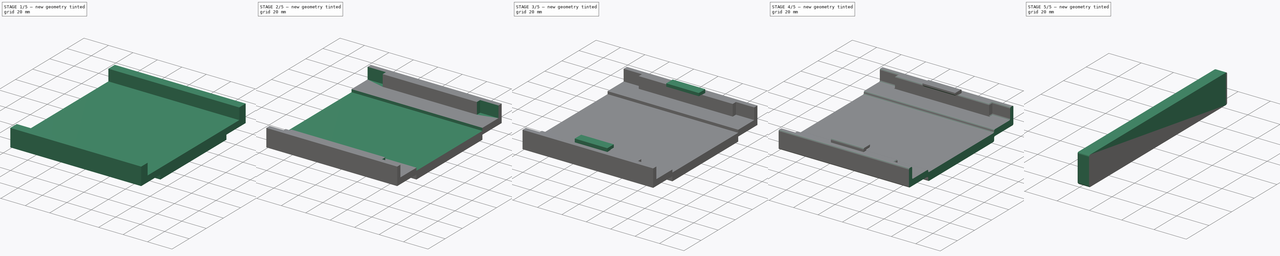
[diagram: build sequence overview — one tinted view per stage of 5, left to right]
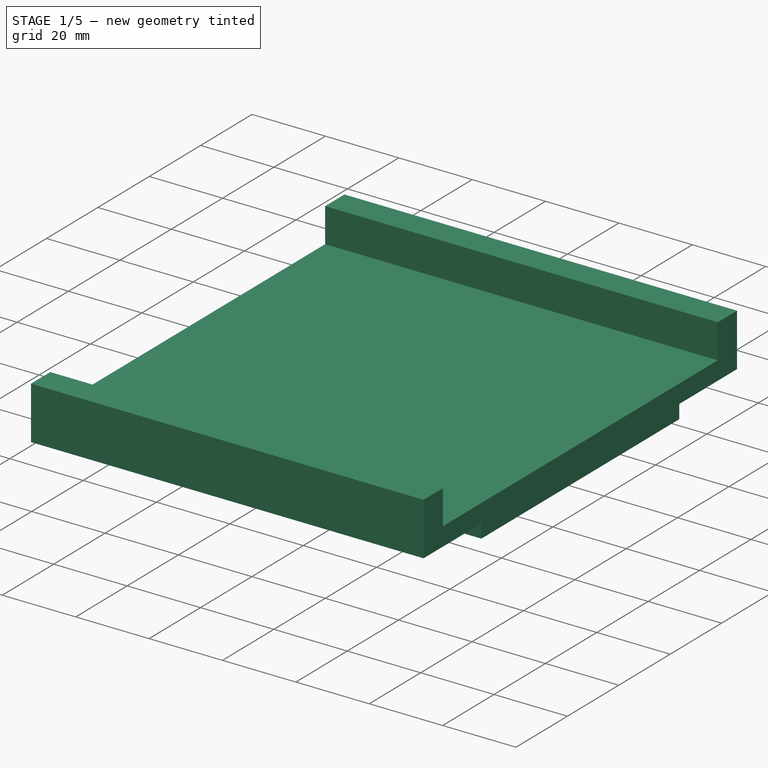
[diagram: stage 1 of 5 — iso view after this stage's code; geometry added in this stage tinted green]
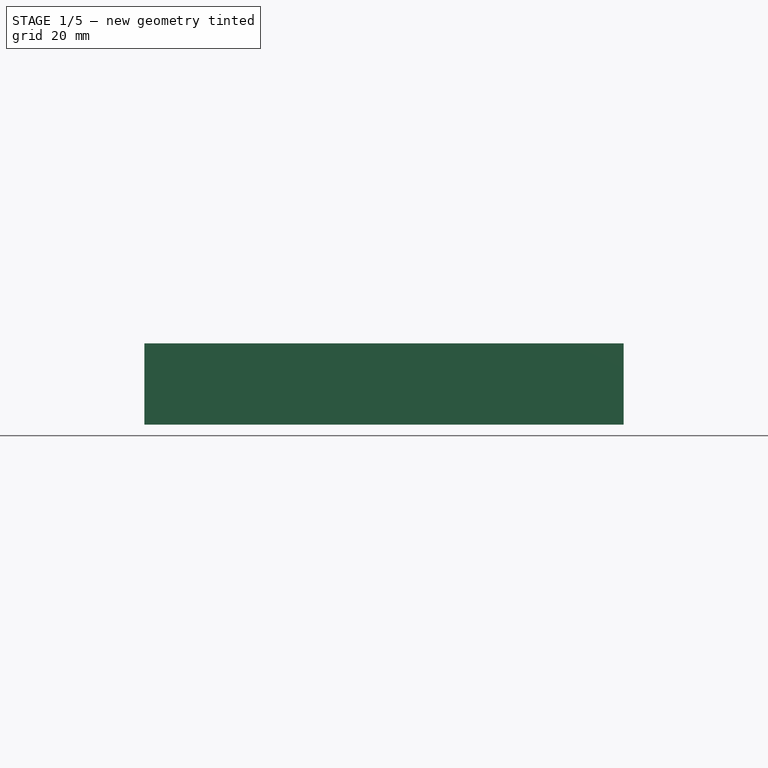
[diagram: stage 1 of 5 — front view after this stage's code; geometry added in this stage tinted green]
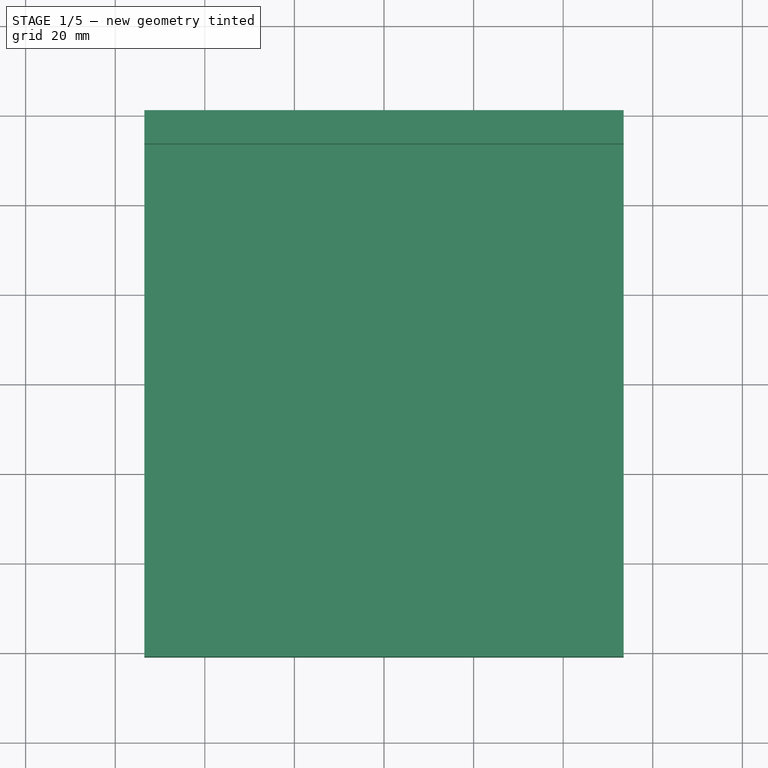
[diagram: stage 1 of 5 — top view after this stage's code; geometry added in this stage tinted green]
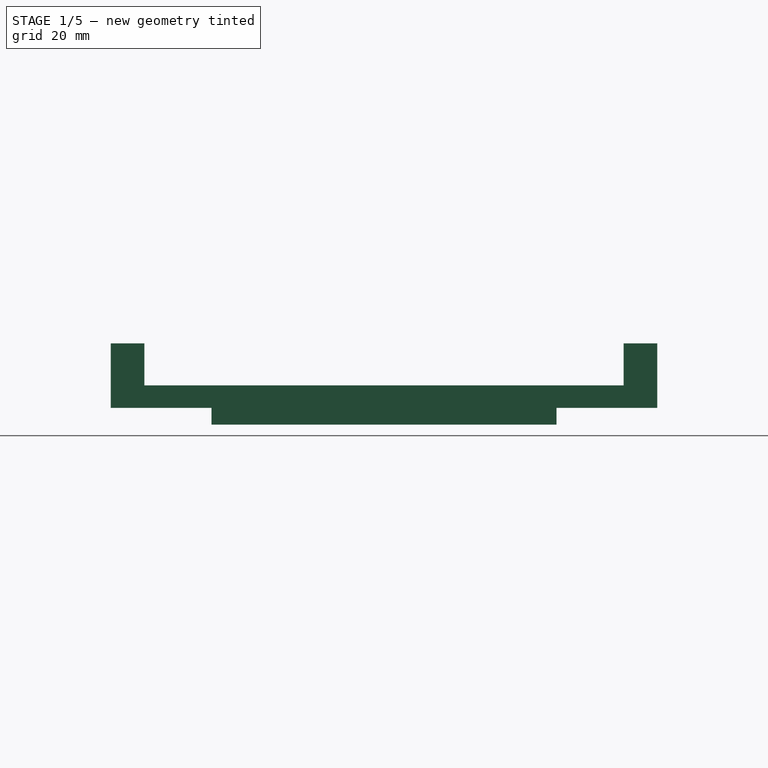
[diagram: stage 1 of 5 — right view after this stage's code; geometry added in this stage tinted green]
FCSTD DOCUMENT  (FreeCAD 1.2R20260204 (Git shallow))
Label: 2026-02-05--IntechStudioGrid3_Holder_GitH--V01
License: All rights reserved
LicenseURL: https://en.wikipedia.org/wiki/All_rights_reserved
objects: Sketcher::SketchObject×6, PartDesign::Pocket×5, App::Point×4, PartDesign::Pad×4, PartDesign::Plane×2, PartDesign::Mirrored×2, PartDesign::Fillet×2, PartDesign::Body×2, App::Part×2, Measure::MeasureLength×2, Spreadsheet::Sheet×1, PartDesign::Chamfer×1, PartDesign::SubShapeBinder×1, PartDesign::LinearPattern×1, App::DocumentObjectGroup×1
note: 59 computed .brp shape members not serialized (recipe doc carries the construction recipe); baked Part::Feature solids carry a one-line shape summary decoded from their .brp

FEATURE [App::Point] Origin001
  Role = Origin
FEATURE [Sketcher::SketchObject] Sketch
  ArcFitTolerance = 1e-06
  AttachmentSupport = -> [Origin]
  ExternalTypes = [0]
  FullyConstrained = true
  MakeInternals = false
  MapMode = 5
  expr: Constraints[25] = <<GridControl>>.GridWidthLength
  expr: Constraints[27] = <<GridControl>>.HolderWallSize
  sketch-geometry (11):
    g0: LineSegment StartX=53.5 StartY=-53.5 StartZ=0 EndX=53.5 EndY=53.5 EndZ=0
    g1: LineSegment [constr] StartX=53.5 StartY=53.5 StartZ=0 EndX=-53.5 EndY=53.5 EndZ=0
    g2: LineSegment StartX=-53.5 StartY=53.5 StartZ=0 EndX=-53.5 EndY=-53.5 EndZ=0
    g3: LineSegment [constr] StartX=-53.5 StartY=-53.5 StartZ=0 EndX=53.5 EndY=-53.5 EndZ=0
    g4: GeomPoint [constr] X=0 Y=0 Z=0
    g5: LineSegment StartX=-53.5 StartY=53.5 StartZ=0 EndX=-53.5 EndY=61 EndZ=0
    g6: LineSegment StartX=-53.5 StartY=61 StartZ=0 EndX=53.5 EndY=61 EndZ=0
    g7: LineSegment StartX=53.5 StartY=61 StartZ=0 EndX=53.5 EndY=53.5 EndZ=0
    g8: LineSegment StartX=-53.5 StartY=-53.5 StartZ=0 EndX=-53.5 EndY=-61 EndZ=0
    g9: LineSegment StartX=-53.5 StartY=-61 StartZ=0 EndX=53.5 EndY=-61 EndZ=0
    g10: LineSegment StartX=53.5 StartY=-61 StartZ=0 EndX=53.5 EndY=-53.5 EndZ=0
  constraints (28):
    c: Coincident(g0,g1)
    c: Coincident(g1,g2)
    c: Coincident(g2,g3)
    c: Coincident(g3,g0)
    c: Vertical(g0)
    c: Vertical(g2)
    c: Horizontal(g1)
    c: Horizontal(g3)
    c: Symmetric(g2,g0,g4)
    c: Coincident(g4,g-1)
    c: Coincident(g5,g1)
    c: Vertical(g5)
    c: Coincident(g6,g5)
    c: Horizontal(g6)
    c: Coincident(g7,g6)
    c: Coincident(g7,g0)
    c: Vertical(g7)
    c: Coincident(g8,g2)
    c: Vertical(g8)
    c: Coincident(g9,g8)
    c: Horizontal(g9)
    c: Coincident(g10,g9)
    c: Coincident(g10,g0)
    c: Vertical(g10)
    c: Equal(g10,g5)
    c: DistanceY(g2,g2) = 107
    c: Equal(g1,g2)
    c: DistanceY(g7,g7) = 7.5
FEATURE [Spreadsheet::Sheet] Spreadsheet  label="GridControl"
  cells = B4='GridWidthLength; C4='CircuitBoardWidthLength; D4='HolderWallSize1; G4='FitClearance; H4='AmountUtilizedLengthwise; I4='AmountUtilizedWidthwise; B5(GridWidthLength)==106.6 + 0.4; C5(CircuitBoardWidthLength)==100 mm; D5(HolderWallSize)==7.5 mm; G5(FitClearance)==4 mm / 10; H5(AmountUtilizedLengthwise)=3; I5(AmountUtilizedWidthwise)=1; B6='GridDepth; C6='CircuitBoardDepth; D6='HolderWallPocketLength; B7(GridDepth)==14.4 mm; C7(CircuitBoardDepth)==1.6 mm; D7(HolderWallPocketLength)==15 mm; B8='GridCornerFillet1; B9(GridCornerFillet1)==2.5 mm
FEATURE [PartDesign::Pad] Pad
  Direction = (0,0,1)
  Length = 14.4
  Length2 = 10
  Profile = -> Sketch
  ReferenceAxis = -> Sketch [N_Axis]
  Refine = true
  SideType = 0
  Suppressed = false
  Type = 0
  Type2 = 0
  expr: Length = <<GridControl>>.GridDepth
FEATURE [PartDesign::Plane] DatumPlane
  AttachmentSupport = -> [Pad]
  Length = 60
  MapMode = 5
  Placement = pos=(0,0,14.4) rot=(0,0,1;0rad)
  ResizeMode = 0
  Width = 60
FEATURE [Sketcher::SketchObject] Sketch001
  ArcFitTolerance = 1e-06
  AttachmentSupport = -> [DatumPlane]
  ExternalGeometry = -> [Pad]
  ExternalTypes = [0]
  FullyConstrained = true
  MakeInternals = false
  MapMode = 5
  Placement = pos=(0,0,14.4) rot=(0,0,1;0rad)
  expr: Constraints[11] = <<GridControl>>.HolderWallSize
  sketch-geometry (4):
    g0: LineSegment StartX=-53.5 StartY=53.5 StartZ=0 EndX=-53.5 EndY=-53.5 EndZ=0
    g1: LineSegment StartX=-53.5 StartY=-53.5 StartZ=0 EndX=53.5 EndY=-53.5 EndZ=0
    g2: LineSegment StartX=53.5 StartY=-53.5 StartZ=0 EndX=53.5 EndY=53.5 EndZ=0
    g3: LineSegment StartX=53.5 StartY=53.5 StartZ=0 EndX=-53.5 EndY=53.5 EndZ=0
  constraints (12):
    c: Coincident(g0,g1)
    c: Coincident(g1,g2)
    c: Coincident(g2,g3)
    c: Coincident(g3,g0)
    c: Vertical(g0)
    c: Vertical(g2)
    c: Horizontal(g1)
    c: Horizontal(g3)
    c: PointOnObject(g0,g-6)
    c: PointOnObject(g1,g-4)
    c: Equal(g0,g3)
    c: Distance(g-5,g3) = 7.5
FEATURE [PartDesign::Pocket] Pocket
  BaseFeature = -> Pad
  Direction = (0,0,-1)
  Length = 9.375
  Length2 = 5
  Profile = -> Sketch001
  ReferenceAxis = -> Sketch001 [N_Axis]
  Refine = true
  SideType = 0
  Suppressed = false
  Type = 0
  Type2 = 0
  expr: Length = <<GridControl>>.HolderWallSize * 1.25
FEATURE [Sketcher::SketchObject] Sketch002
  ArcFitTolerance = 1e-06
  AttachmentSupport = -> [Pocket]
  ExternalGeometry = -> [Pocket]
  ExternalTypes = [0]
  FullyConstrained = true
  MakeInternals = false
  MapMode = 5
  Placement = pos=(0,53.5,0) rot=(1,0,0;1.5708rad)
  expr: Constraints[21] = <<GridControl>>.HolderWallPocketLength
  sketch-geometry (8):
    g0: LineSegment StartX=-53.5 StartY=14.4 StartZ=0 EndX=-53.5 EndY=5.025 EndZ=0
    g1: LineSegment StartX=-53.5 StartY=5.025 StartZ=0 EndX=-38.5 EndY=5.025 EndZ=0
    g2: LineSegment StartX=-38.5 StartY=5.025 StartZ=0 EndX=-38.5 EndY=14.4 EndZ=0
    g3: LineSegment StartX=-38.5 StartY=14.4 StartZ=0 EndX=-53.5 EndY=14.4 EndZ=0
    g4: LineSegment StartX=53.5 StartY=14.4 StartZ=0 EndX=38.5 EndY=14.4 EndZ=0
    g5: LineSegment StartX=38.5 StartY=14.4 StartZ=0 EndX=38.5 EndY=5.025 EndZ=0
    g6: LineSegment StartX=38.5 StartY=5.025 StartZ=0 EndX=53.5 EndY=5.025 EndZ=0
    g7: LineSegment StartX=53.5 StartY=5.025 StartZ=0 EndX=53.5 EndY=14.4 EndZ=0
  constraints (22):
    c: Coincident(g0,g1)
    c: Coincident(g1,g2)
    c: Coincident(g2,g3)
    c: Coincident(g3,g0)
    c: Vertical(g0)
    c: Vertical(g2)
    c: Horizontal(g1)
    c: Horizontal(g3)
    c: Coincident(g0,g-5)
    c: PointOnObject(g1,g-6)
    c: Coincident(g4,g5)
    c: Coincident(g5,g6)
    c: Coincident(g6,g7)
    c: Coincident(g7,g4)
    c: Horizontal(g4)
    c: Horizontal(g6)
    c: Vertical(g5)
    c: Vertical(g7)
    c: Coincident(g4,g-5)
    c: PointOnObject(g5,g-6)
    c: Equal(g3,g4)
    c: Distance(g3,g3) = 15
FEATURE [Sketcher::SketchObject] Sketch003
  ArcFitTolerance = 1e-06
  AttachmentSupport = -> [Pocket]
  ExternalGeometry = -> [Pocket]
  ExternalTypes = [0]
  FullyConstrained = true
  MakeInternals = false
  MapMode = 5
  Placement = pos=(0,0,5.025) rot=(0,0,1;0rad)
  expr: Constraints[11] = <<GridControl>>.HolderWallPocketLength
  sketch-geometry (5):
    g0: LineSegment StartX=53.5 StartY=-38.5 StartZ=0 EndX=53.5 EndY=38.5 EndZ=0
    g1: LineSegment StartX=53.5 StartY=38.5 StartZ=0 EndX=-53.5 EndY=38.5 EndZ=0
    g2: LineSegment StartX=-53.5 StartY=38.5 StartZ=0 EndX=-53.5 EndY=-38.5 EndZ=0
    g3: LineSegment StartX=-53.5 StartY=-38.5 StartZ=0 EndX=53.5 EndY=-38.5 EndZ=0
    g4: GeomPoint [constr] X=0 Y=0 Z=0
  constraints (12):
    c: Coincident(g0,g1)
    c: Coincident(g1,g2)
    c: Coincident(g2,g3)
    c: Coincident(g3,g0)
    c: Vertical(g0)
    c: Vertical(g2)
    c: Horizontal(g1)
    c: Horizontal(g3)
    c: Symmetric(g2,g0,g4)
    c: Coincident(g4,g-1)
    c: PointOnObject(g1,g-3)
    c: DistanceY(g1,g-6) = 15
FEATURE [PartDesign::Pad] Pad001
  BaseFeature = -> Pocket
  Direction = (0,0,1)
  Length = 10
  Length2 = 10
  Offset = 3.75
  Profile = -> Sketch003
  ReferenceAxis = -> Sketch003 [N_Axis]
  Refine = true
  SideType = 0
  Suppressed = false
  Type = 3
  Type2 = 0
  UpToFace = -> Pocket [Face4]
  expr: Offset = <<GridControl>>.HolderWallSize / 2
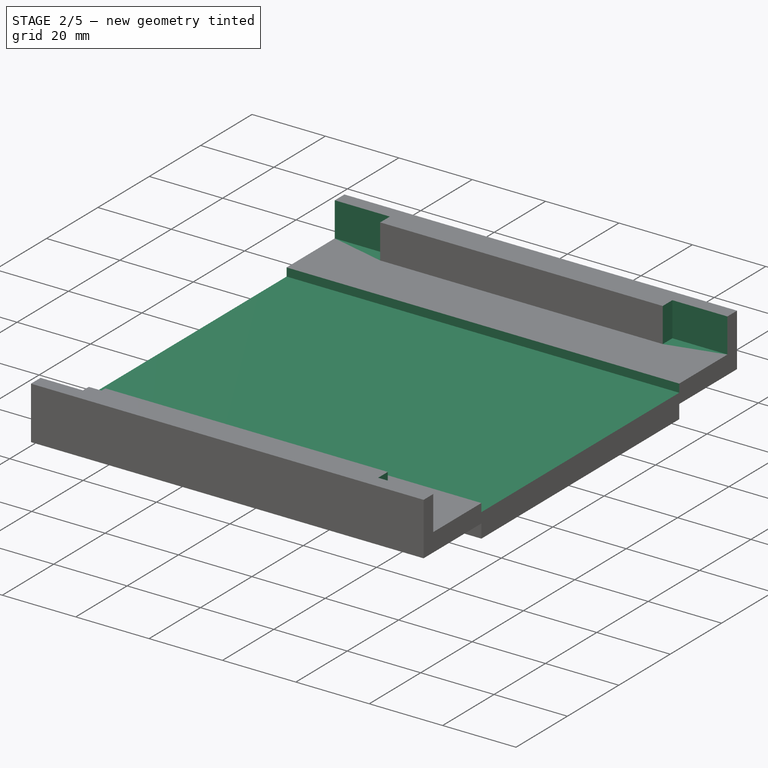
[diagram: stage 2 of 5 — iso view after this stage's code; geometry added in this stage tinted green]
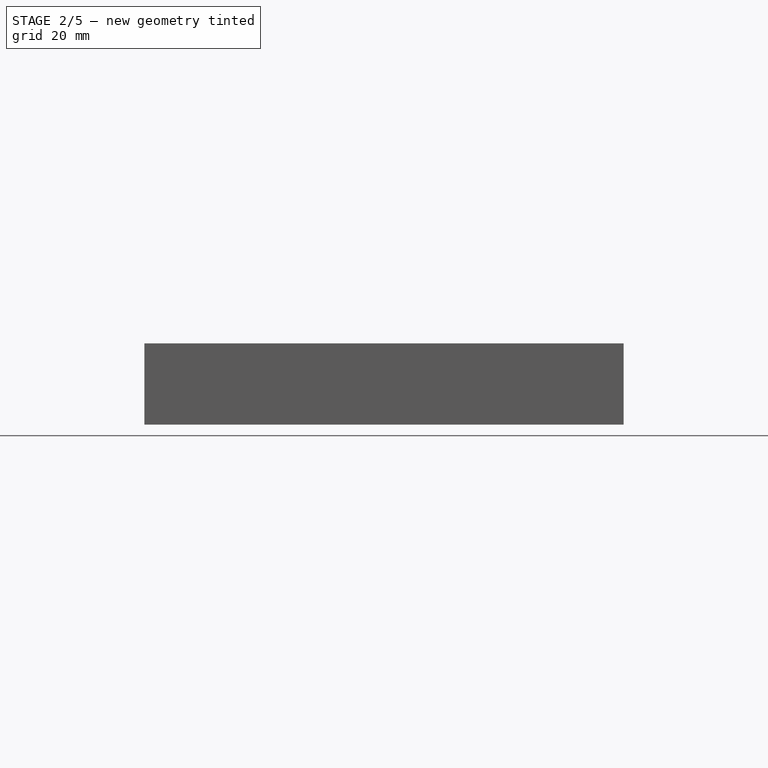
[diagram: stage 2 of 5 — front view after this stage's code; geometry added in this stage tinted green]
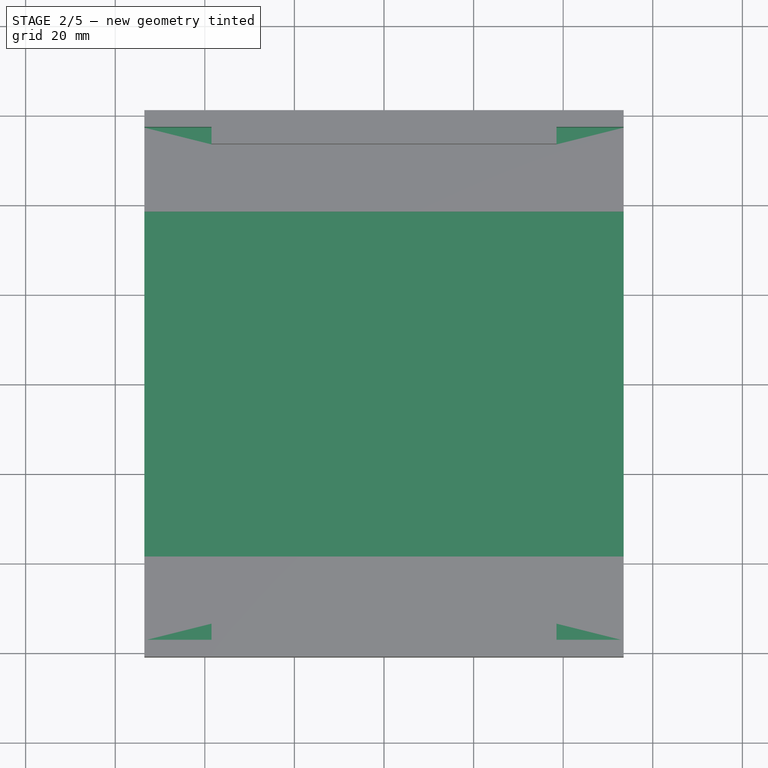
[diagram: stage 2 of 5 — top view after this stage's code; geometry added in this stage tinted green]
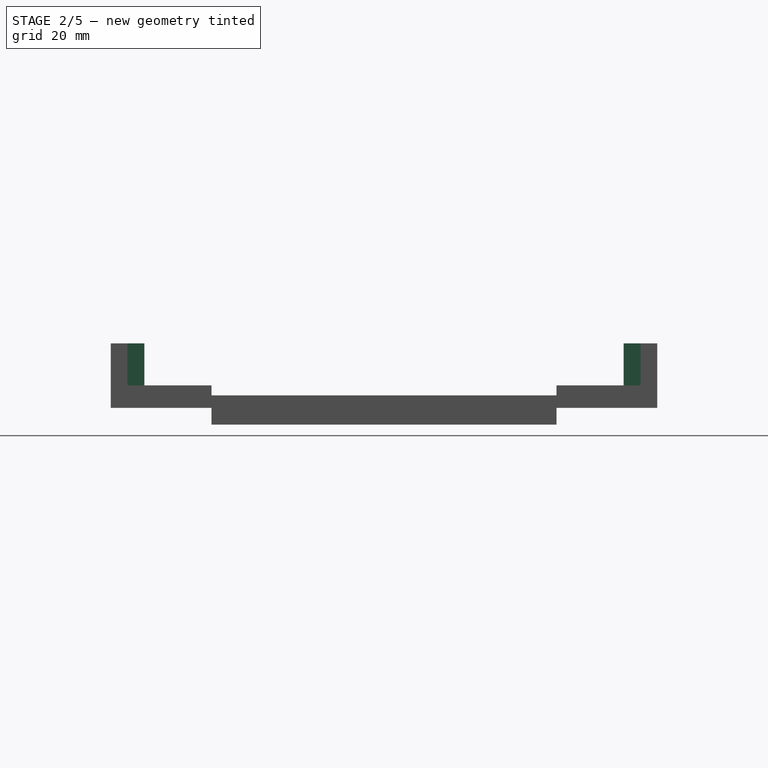
[diagram: stage 2 of 5 — right view after this stage's code; geometry added in this stage tinted green]
FEATURE [PartDesign::Pocket] Pocket001
  BaseFeature = -> Pad001
  Direction = (0,0,-1)
  Length = 2.25
  Length2 = 5
  Profile = -> Sketch003
  ReferenceAxis = -> Sketch003 [N_Axis]
  Refine = true
  SideType = 0
  Suppressed = false
  Type = 0
  Type2 = 0
FEATURE [PartDesign::Pocket] Pocket002
  BaseFeature = -> Pocket001
  Direction = (0,1,-2e-16)
  Length = 3.75
  Length2 = 5
  Profile = -> Sketch002
  ReferenceAxis = -> Sketch002 [N_Axis]
  Refine = true
  SideType = 0
  Suppressed = false
  Type = 0
  Type2 = 0
  expr: Length = <<GridControl>>.HolderWallSize / 2
FEATURE [PartDesign::Mirrored] Mirrored
  BaseFeature = -> Pocket002
  MirrorPlane = -> XZ_Plane
  Originals = -> [Pocket002]
  Refine = true
  Suppressed = false
  TransformMode = 0
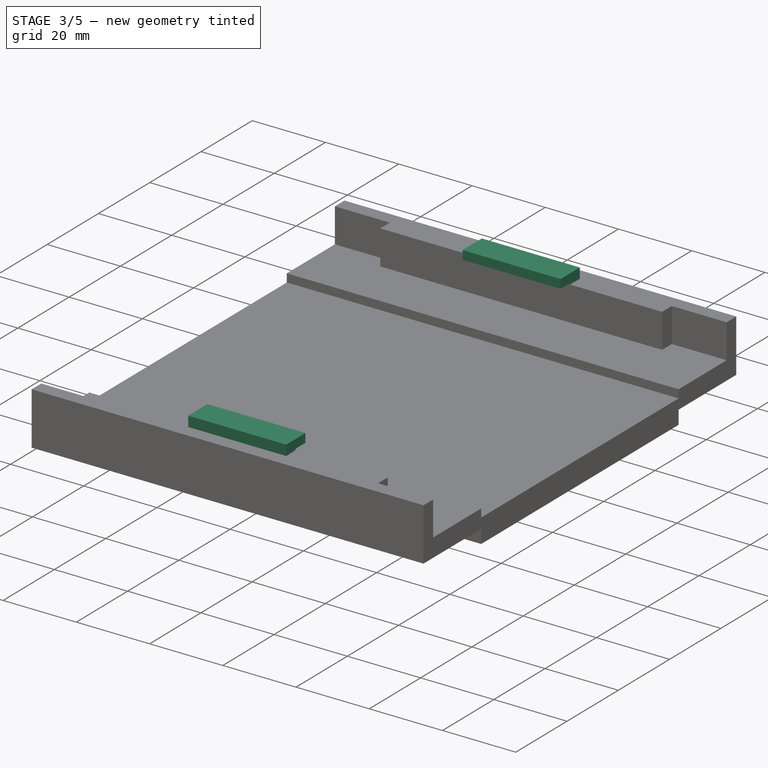
[diagram: stage 3 of 5 — iso view after this stage's code; geometry added in this stage tinted green]
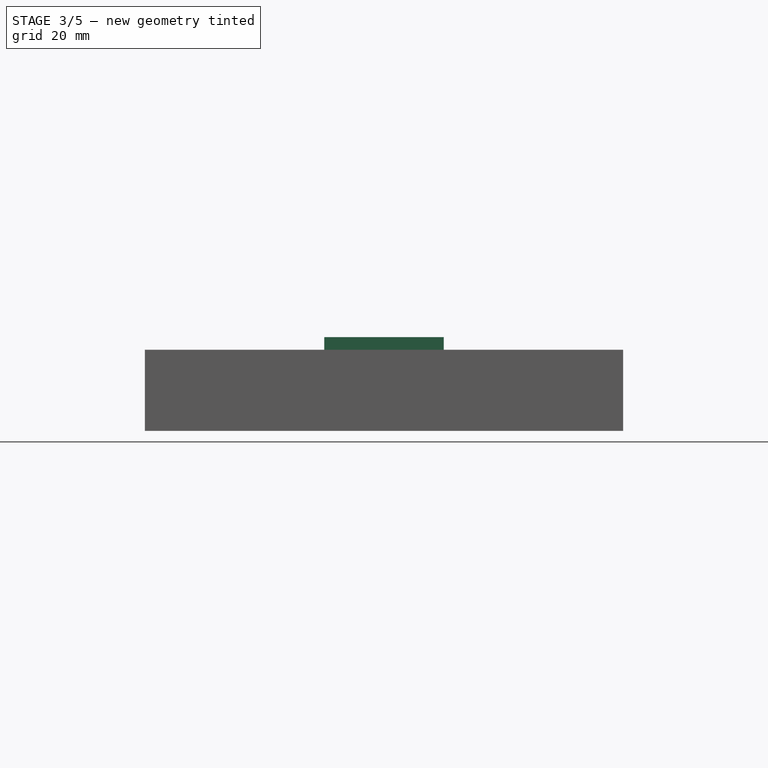
[diagram: stage 3 of 5 — front view after this stage's code; geometry added in this stage tinted green]
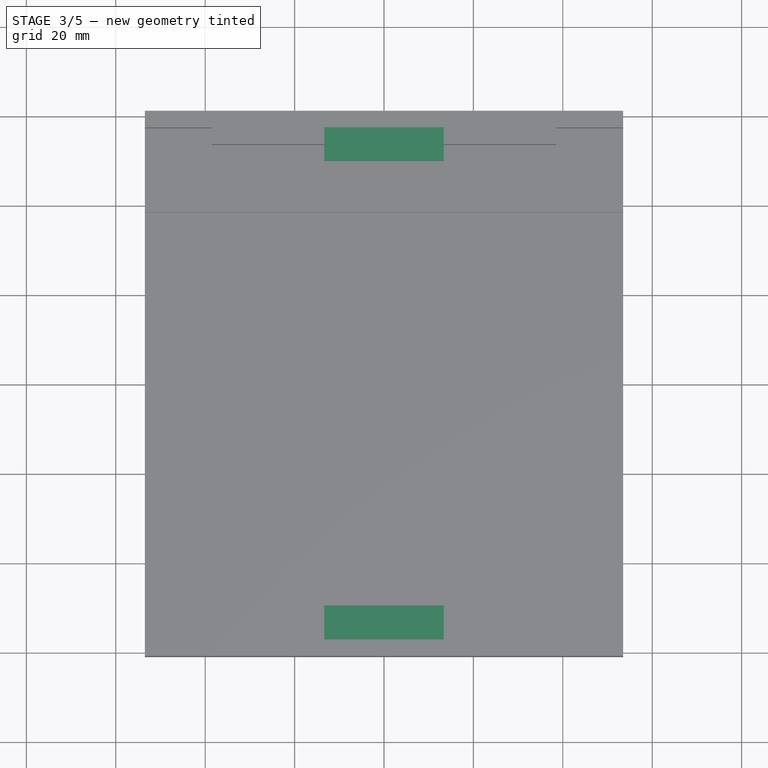
[diagram: stage 3 of 5 — top view after this stage's code; geometry added in this stage tinted green]
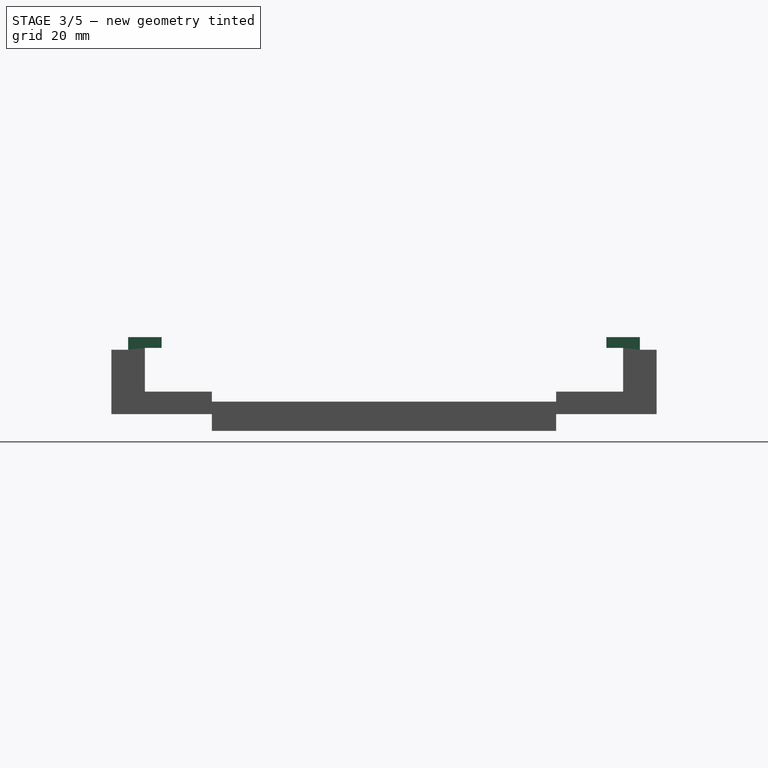
[diagram: stage 3 of 5 — right view after this stage's code; geometry added in this stage tinted green]
FEATURE [PartDesign::Plane] DatumPlane001
  AttachmentSupport = -> [Mirrored]
  Length = 60
  MapMode = 45
  Placement = pos=(-7.3e-15,1.634e-13,14.4) rot=(0,0,1;0rad)
  ResizeMode = 0
  Width = 60
FEATURE [Sketcher::SketchObject] Sketch004
  ArcFitTolerance = 1e-06
  AttachmentSupport = -> [DatumPlane001]
  ExternalGeometry = -> [Mirrored]
  ExternalTypes = [0,0,0,0]
  FullyConstrained = true
  MakeInternals = false
  MapMode = 5
  Placement = pos=(-7.3e-15,1.634e-13,14.4) rot=(0,0,1;0rad)
  expr: Constraints[14] = <<GridControl>>.HolderWallSize
  expr: Constraints[15] = <<GridControl>>.GridWidthLength / 4
  sketch-geometry (6):
    g0: LineSegment [constr] StartX=-38.5 StartY=57.25 StartZ=0 EndX=38.5 EndY=57.25 EndZ=0
    g1: LineSegment StartX=-13.375 StartY=49.75 StartZ=0 EndX=13.375 EndY=49.75 EndZ=0
    g2: LineSegment StartX=13.375 StartY=49.75 StartZ=0 EndX=13.375 EndY=57.25 EndZ=0
    g3: LineSegment StartX=13.375 StartY=57.25 StartZ=0 EndX=-13.375 EndY=57.25 EndZ=0
    g4: LineSegment StartX=-13.375 StartY=57.25 StartZ=0 EndX=-13.375 EndY=49.75 EndZ=0
    g5: GeomPoint [constr] X=0 Y=53.5 Z=0
  constraints (16):
    c: Coincident(g0,g-17)
    c: Coincident(g0,g-14)
    c: Coincident(g1,g2)
    c: Coincident(g2,g3)
    c: Coincident(g3,g4)
    c: Coincident(g4,g1)
    c: Horizontal(g1)
    c: Horizontal(g3)
    c: Vertical(g2)
    c: Vertical(g4)
    c: Symmetric(g3,g1,g5)
    c: PointOnObject(g5,g-2)
    c: PointOnObject(g2,g0)
    c: Distance(g0,g-15) = 3.75
    c: DistanceY(g2,g2) = 7.5
    c: Distance(g1,g1) = 26.75
FEATURE [PartDesign::Pad] Pad002
  BaseFeature = -> Mirrored
  Direction = (0,0,1)
  Length = 2.8
  Length2 = 10
  Profile = -> Sketch004
  ReferenceAxis = -> Sketch004 [N_Axis]
  Refine = true
  SideType = 0
  Suppressed = false
  Type = 0
  Type2 = 0
FEATURE [PartDesign::Mirrored] Mirrored001
  BaseFeature = -> Pad002
  MirrorPlane = -> XZ_Plane
  Originals = -> [Pad002]
  Refine = true
  Suppressed = false
  TransformMode = 0
FEATURE [PartDesign::Pocket] Pocket003
  BaseFeature = -> Mirrored001
  Direction = (0,0,1)
  Length = 0.4
  Length2 = 5
  Profile = -> Mirrored001 [Face33,Face36]
  Refine = true
  SideType = 0
  Suppressed = false
  Type = 0
  Type2 = 0
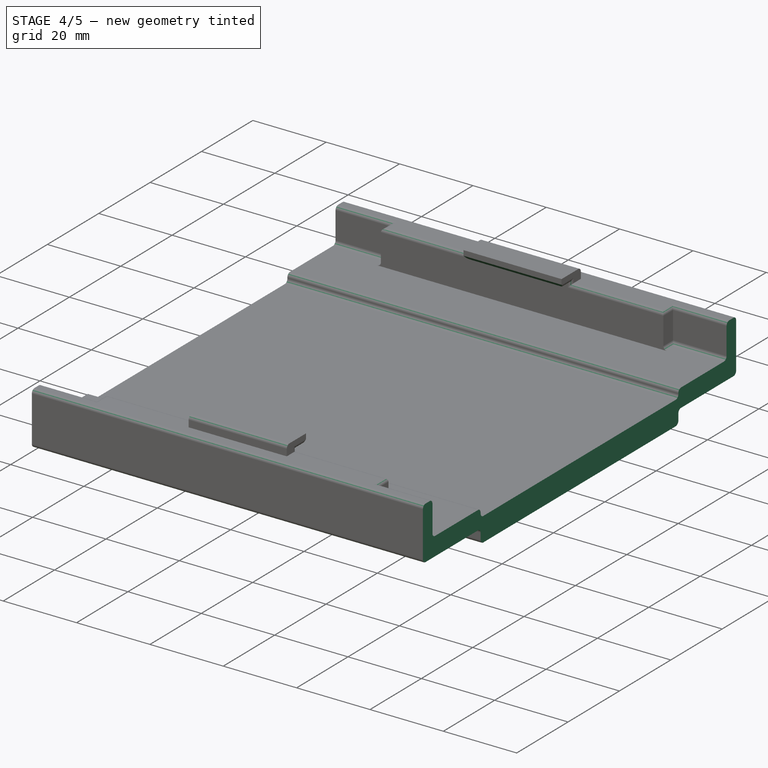
[diagram: stage 4 of 5 — iso view after this stage's code; geometry added in this stage tinted green]
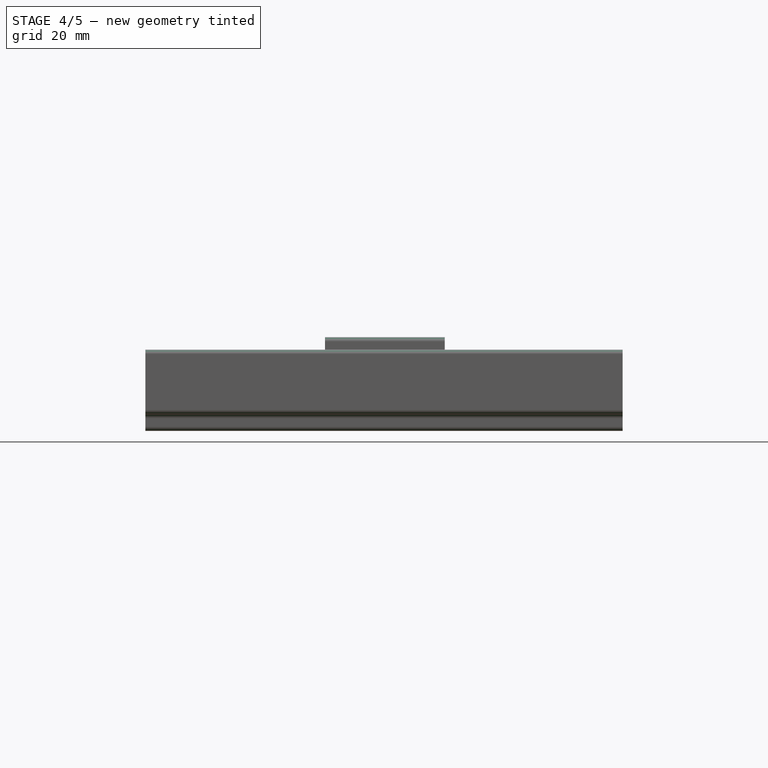
[diagram: stage 4 of 5 — front view after this stage's code; geometry added in this stage tinted green]
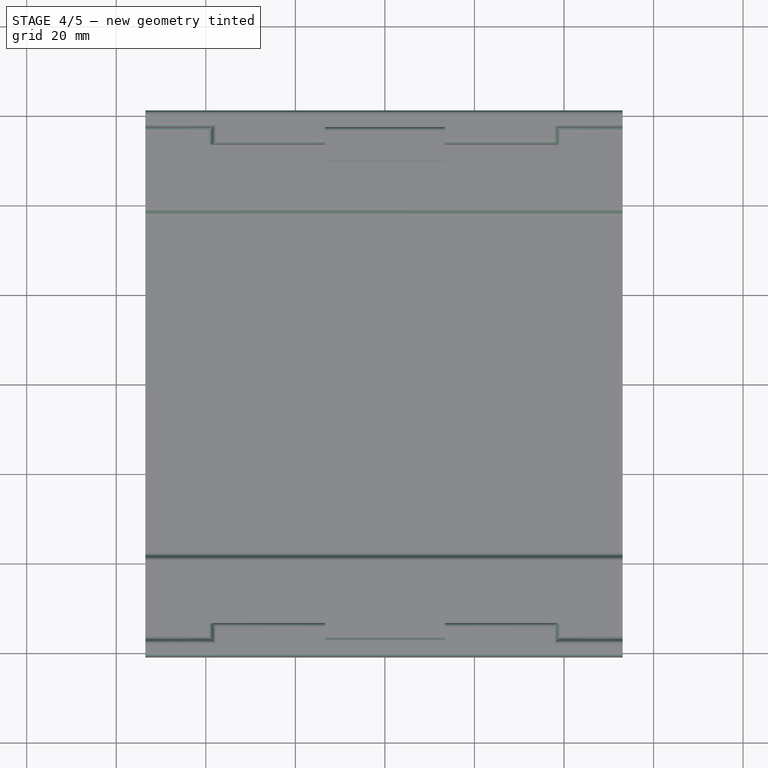
[diagram: stage 4 of 5 — top view after this stage's code; geometry added in this stage tinted green]
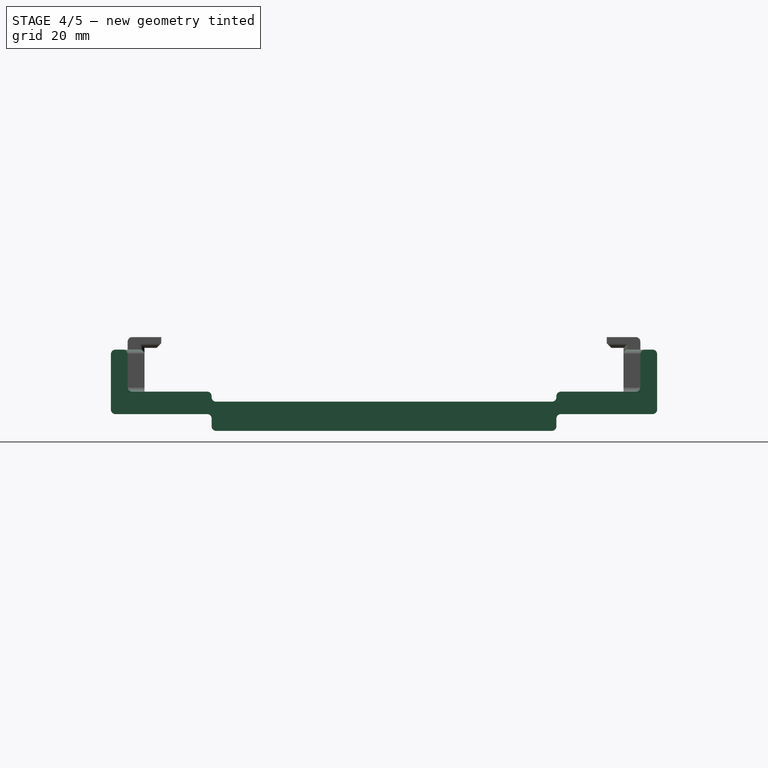
[diagram: stage 4 of 5 — right view after this stage's code; geometry added in this stage tinted green]
FEATURE [PartDesign::Chamfer] Chamfer
  Angle = 45
  Base = -> Pocket003 [Edge107,Edge104]
  BaseFeature = -> Pocket003
  ChamferType = 0
  FlipDirection = false
  Refine = true
  Size = 1
  Size2 = 1
  SupportTransform = false
  Suppressed = false
  UseAllEdges = false
FEATURE [PartDesign::Fillet] Fillet
  Base = -> Chamfer [Edge88,Edge87,Edge86,Edge82,Edge81,Edge80,Edge73,Edge71,Edge35,Edge13,Edge24,Edge25,Edge38,Edge37,Edge39,Edge29,Edge28,Edge15,Edge3,Edge14,Edge1,Edge8,Edge33,Edge101,Edge96,Edge98,Edge108,Edge72,Edge76,Edge75,Edge78,Edge77,Edge107,Edge30,Edge22,Edge57,Edge93,Edge92,Edge91,Edge90,+2 more]
  BaseFeature = -> Chamfer
  Radius = 1
  Refine = true
  SupportTransform = false
  Suppressed = false
  UseAllEdges = false
FEATURE [PartDesign::Body] Body001  label="yeah_end"
  AllowCompound = true
  Group = -> [Binder,Sketch005,Pad003,Fillet001]
  Origin = -> Origin006
  Tip = -> Fillet001
FEATURE [App::Part] Part001  label="HolderEnd"
  Group = -> [Body001]
  Origin = -> Origin004
  READ = so uh
FEATURE [PartDesign::Pocket] Pocket004
  BaseFeature = -> Fillet
  Direction = (-1,0,-9e-16)
  Length = 0.4
  Length2 = 5
  Profile = -> Fillet [Face13]
  Refine = true
  SideType = 0
  Suppressed = false
  Type = 0
  Type2 = 0
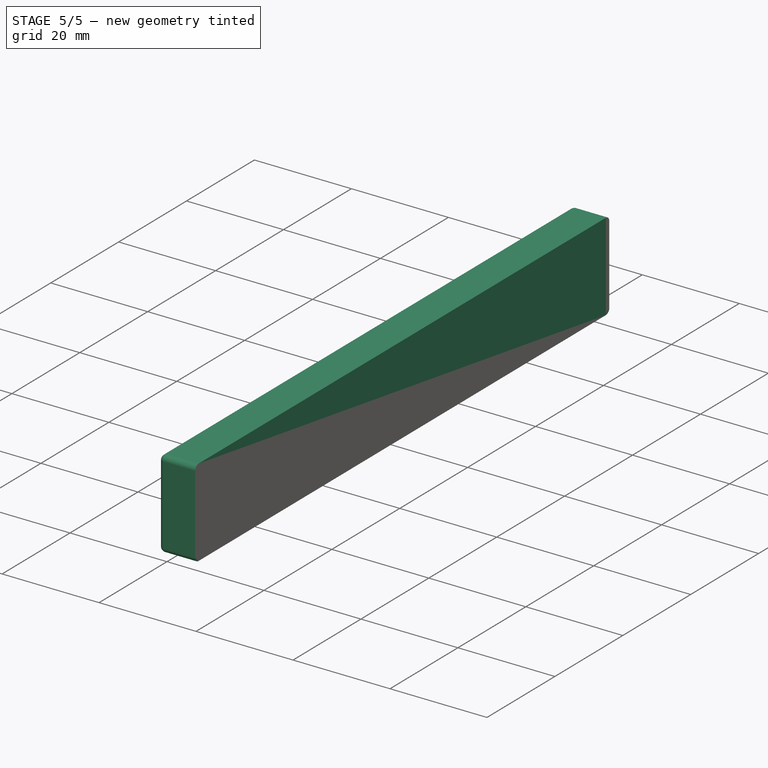
[diagram: stage 5 of 5 — iso view after this stage's code; geometry added in this stage tinted green]
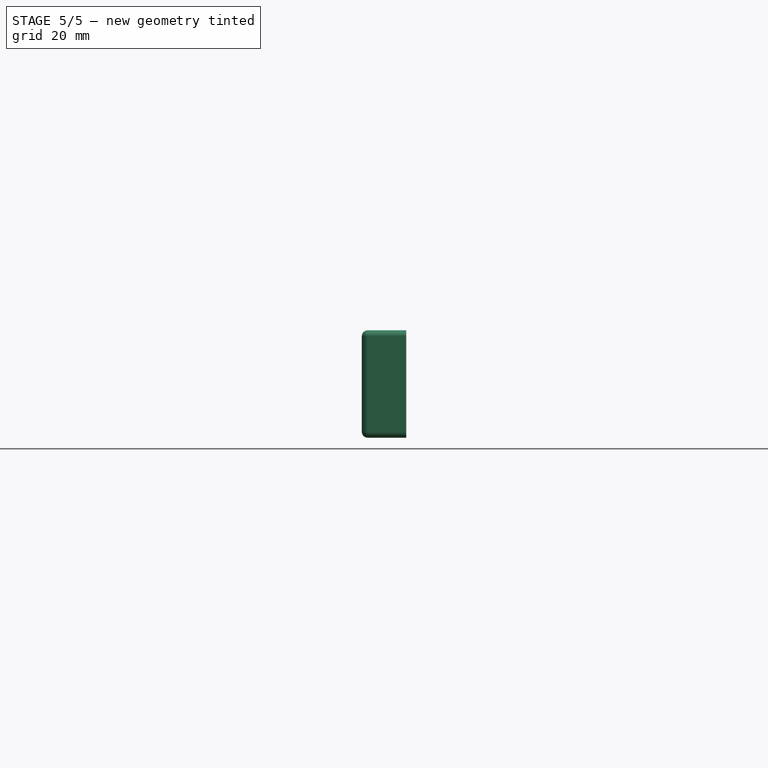
[diagram: stage 5 of 5 — front view after this stage's code; geometry added in this stage tinted green]
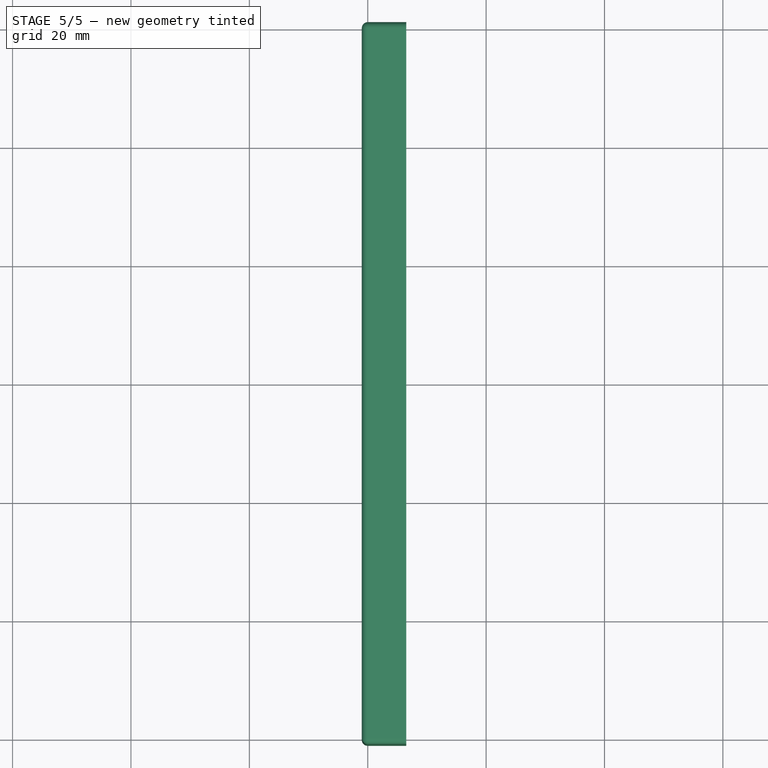
[diagram: stage 5 of 5 — top view after this stage's code; geometry added in this stage tinted green]
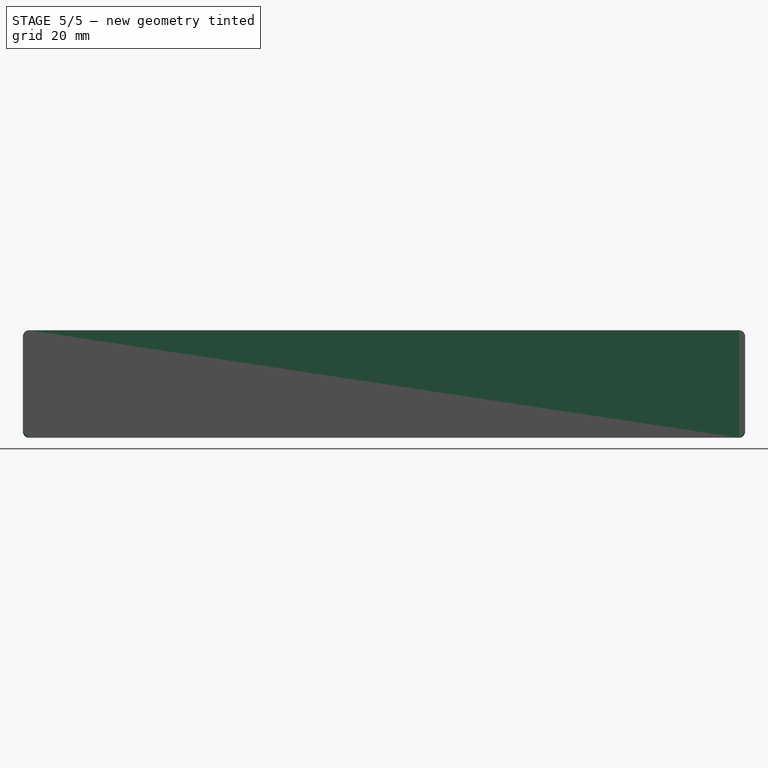
[diagram: stage 5 of 5 — right view after this stage's code; geometry added in this stage tinted green]
FEATURE [App::Point] Origin003
  Role = Origin
FEATURE [App::Point] Origin005  label="Origin006"
  Role = Origin
FEATURE [App::Point] Origin007  label="Origin009"
  Role = Origin
FEATURE [PartDesign::SubShapeBinder] Binder
  BindCopyOnChange = 0
  BindMode = 0
  ClaimChildren = false
  Context = -> Part001 [Body001.Binder.]
  Fuse = false
  MakeFace = true
  OffsetFill = false
  OffsetIntersection = false
  OffsetJoinType = 0
  OffsetOpenResult = false
  PartialLoad = false
  Refine = true
  Relative = true
  Support = -> [Part[Body.Pocket004.]]
  _Version = 2
FEATURE [Sketcher::SketchObject] Sketch005
  ArcFitTolerance = 1e-06
  AttachmentSupport = -> [Binder]
  ExternalGeometry = -> [Binder]
  ExternalTypes = [0]
  FullyConstrained = false
  MakeInternals = false
  MapMode = 5
  Placement = pos=(-53.5,0,0) rot=(0.57735,-0.57735,-0.57735;2.0944rad)
  sketch-geometry (8):
    g0: LineSegment [constr] StartX=-61 StartY=14.4 StartZ=0 EndX=-61 EndY=13.4 EndZ=0
    g1: LineSegment [constr] StartX=-61 StartY=14.4 StartZ=0 EndX=-60 EndY=14.4 EndZ=0
    g2: LineSegment [constr] StartX=37.5 StartY=-3.75 StartZ=0 EndX=61 EndY=-3.75 EndZ=0
    g3: LineSegment [constr] StartX=61 StartY=-3.75 StartZ=0 EndX=61 EndY=1 EndZ=0
    g4: LineSegment StartX=-61 StartY=14.4 StartZ=0 EndX=-61 EndY=-3.75 EndZ=0
    g5: LineSegment StartX=-61 StartY=-3.75 StartZ=0 EndX=61 EndY=-3.75 EndZ=0
    g6: LineSegment StartX=61 StartY=-3.75 StartZ=0 EndX=61 EndY=14.4 EndZ=0
    g7: LineSegment StartX=61 StartY=14.4 StartZ=0 EndX=-61 EndY=14.4 EndZ=0
  constraints (19):
    c: Coincident(g0,g-14)
    c: Coincident(g1,g0)
    c: Tangent(g1,g-10)
    c: Vertical(g0)
    c: Coincident(g2,g-28)
    c: Horizontal(g2)
    c: Coincident(g3,g2)
    c: Coincident(g3,g-33)
    c: Vertical(g3)
    c: Coincident(g4,g5)
    c: Coincident(g5,g6)
    c: Coincident(g6,g7)
    c: Coincident(g7,g4)
    c: Vertical(g4)
    c: Vertical(g6)
    c: Horizontal(g5)
    c: Horizontal(g7)
    c: Coincident(g4,g0)
    c: Coincident(g5,g2)
FEATURE [PartDesign::Pad] Pad003
  Direction = (-1,0,0)
  Length = 7.5
  Length2 = 10
  Profile = -> Sketch005
  ReferenceAxis = -> Sketch005 [N_Axis]
  Refine = true
  SideType = 0
  Suppressed = false
  Type = 0
  Type2 = 0
  expr: Length = <<GridControl>>.HolderWallSize
FEATURE [PartDesign::Fillet] Fillet001
  Base = -> Pad003 [Edge1,Edge8,Edge2,Edge5,Edge12,Edge7,Edge10,Edge4]
  BaseFeature = -> Pad003
  Radius = 1
  Refine = true
  SupportTransform = false
  Suppressed = false
  UseAllEdges = false
FEATURE [PartDesign::LinearPattern] LinearPattern
  BaseFeature = -> Pocket004
  Direction = -> X_Axis
  Direction2 = -> X_Axis
  Length = 213.2
  Length2 = 100
  Mode = 1
  Mode2 = 0
  Occurrences = 3
  Occurrences2 = 1
  Offset = 106.6
  Offset2 = 100
  Refine = true
  Reversed2 = false
  SpacingPattern = [0]
  SpacingPattern2 = [0]
  Spacings = [-1,-1]
  Suppressed = false
  TransformMode = 1
  expr: Length = <<GridControl>>.GridWidthLength - 0.4
  expr: Occurrences = <<GridControl>>.AmountUtilizedLengthwise
FEATURE [PartDesign::Body] Body  label="yeah"
  AllowCompound = true
  Group = -> [Sketch,Pad,DatumPlane,Sketch001,Pocket,Sketch002,Sketch003,Pad001,Pocket001,Pocket002,Mirrored,DatumPlane001,Sketch004,Pad002,Mirrored001,Pocket003,Chamfer,Fillet,Pocket004,LinearPattern]
  Origin = -> Origin
  Tip = -> LinearPattern
FEATURE [Measure::MeasureLength] Length  label="Length: 14.40 mm"
  Elements = -> [Body]
  Length = 14.4
FEATURE [App::Part] Part  label="Holder"
  Group = -> [Body]
  Origin = -> Origin002
FEATURE [Measure::MeasureLength] Length001  label="Length001: 106.60 mm"
  Elements = -> [Part]
  Length = 106.6
FEATURE [App::DocumentObjectGroup] Measurements
  Group = -> [Length,Length001]
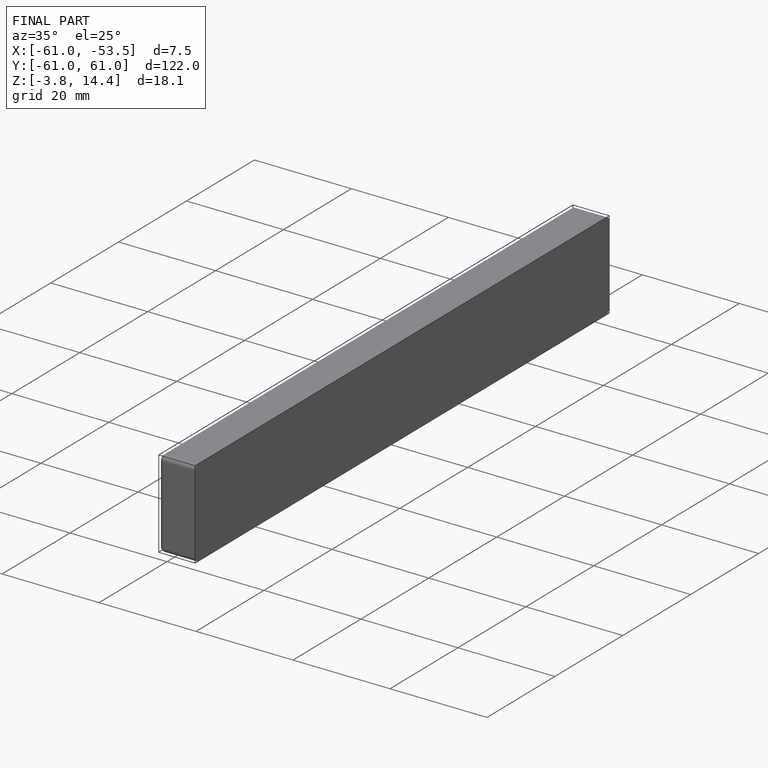
[diagram: finished part — iso view with bounding-box wireframe]
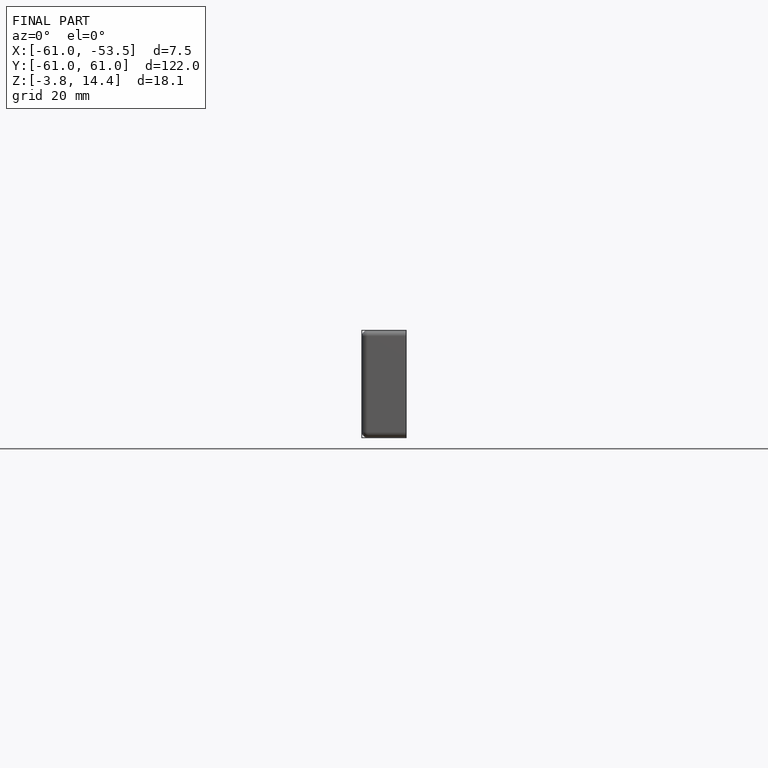
[diagram: finished part — front view with bounding-box wireframe]
